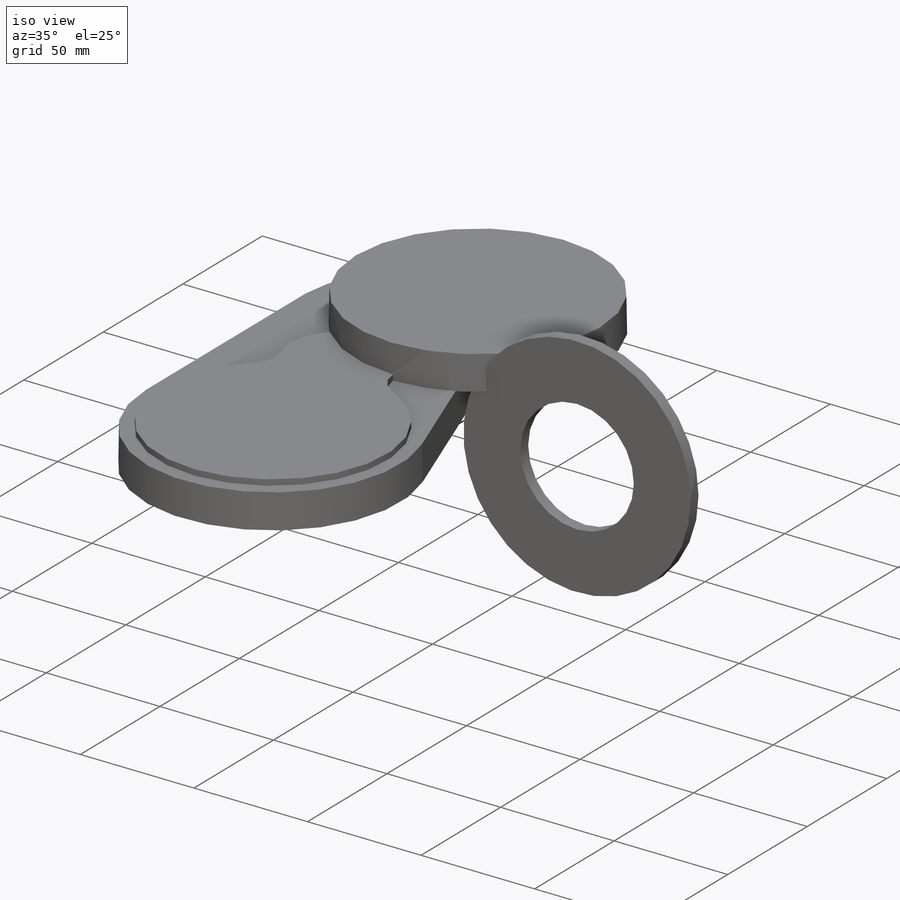
[diagram: iso view]
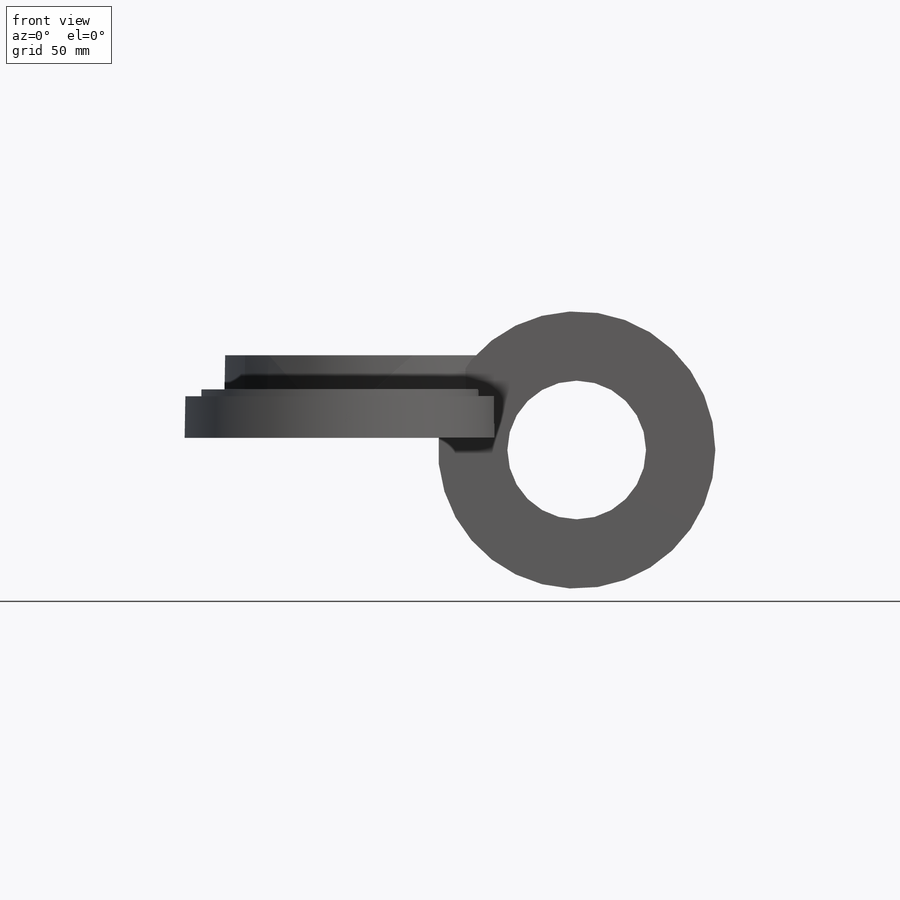
[diagram: front view]
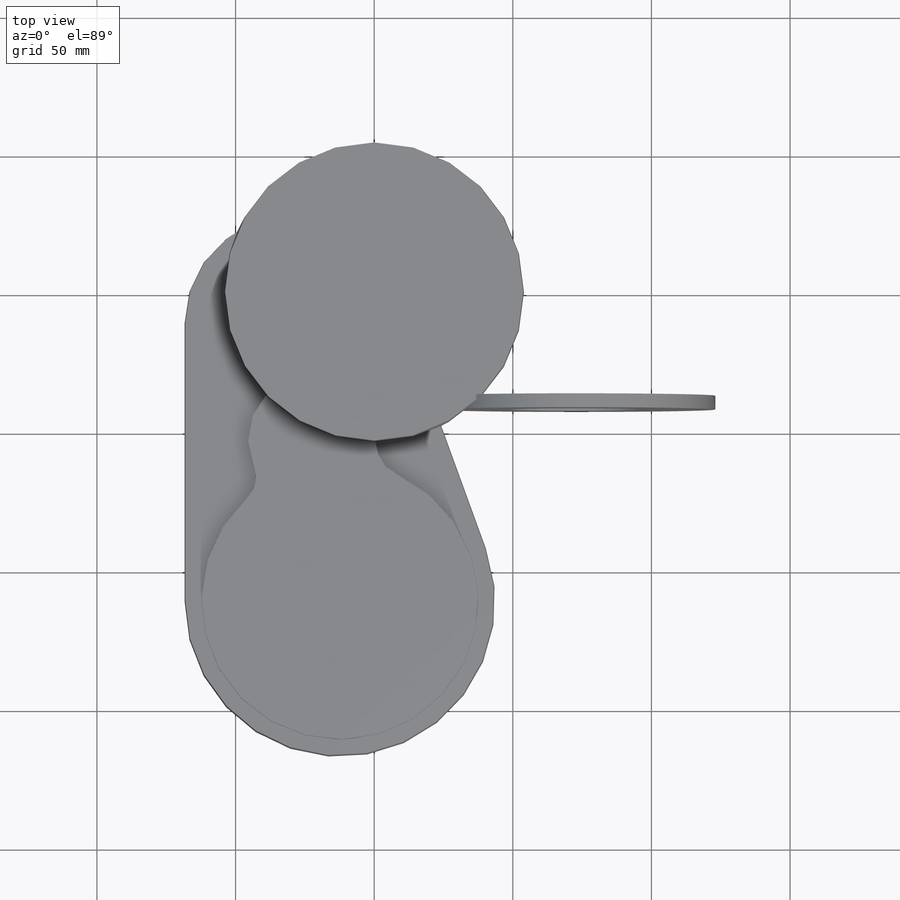
[diagram: top view]
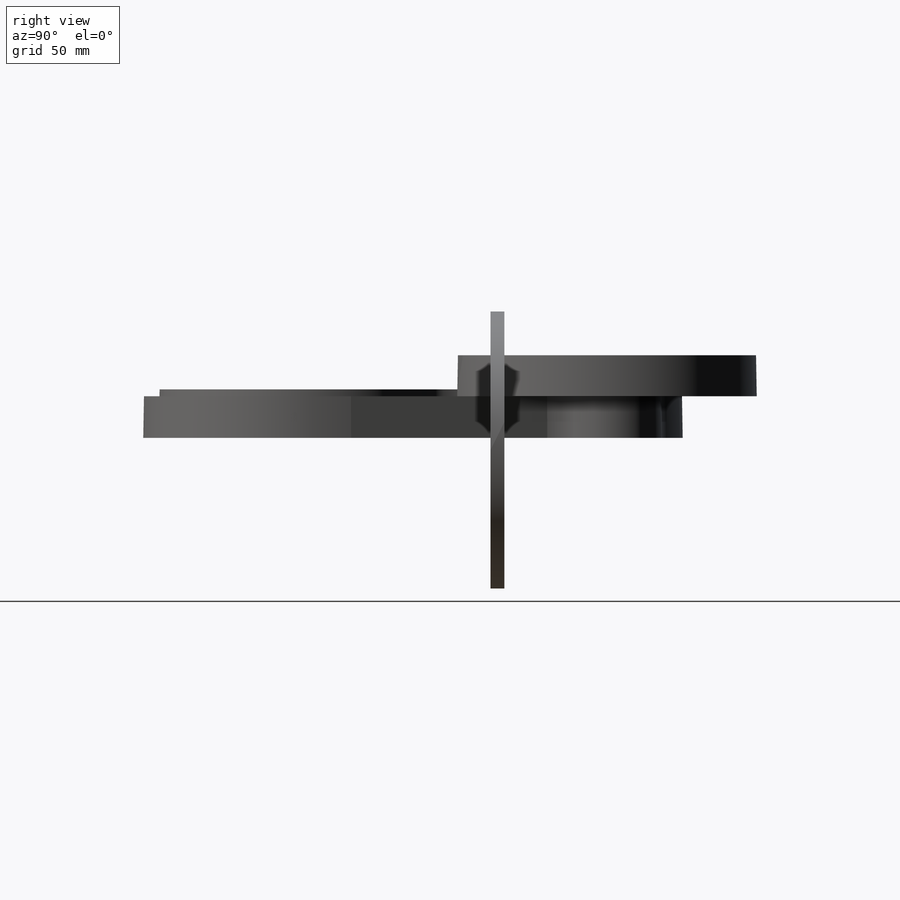
[diagram: right view]
SOLIDWORKS PART (.sldprt)
format: sldprt  version: not decoded by parser v0  size: 556,544 bytes
history: native  units: mm
features: plane x6, sketch x4, extrude x2, material x1, move_body x1, cut_extrude x1, revolve x1 + 1 further entry (+15 scaffold rows collapsed; 3 parser-record rows omitted)
feature tree (35):
  scaffold x15  (default folders/planes/origin — collapsed)
  material  "GD-AlSi9Cu3"
  plane  "Fläche"
  plane  "Längs"
  plane  "Quer"
  plane  "längs-PA364_241 _109356 Polscheibe"
  plane  "quer-PA364_241 _109356 Polscheibe"
  plane  "fläche-PA364_241 _109356 Polscheibe"
  "Scheibe"
  parser-record x3  (decoder bookkeeping rows leaked as tree rows — omitted from the tree; the rows remain in map.json)
  move_body  "Körper-Verschieben/Kopieren2"
  sketch  "Skizze2"  dims[c1.D1=65.0mm c1.D3=65.0mm c2.D1=40.0mm c2.D7=50.0mm c2.D4=20.0mm c2.D8=~50.553368mm c3.D1=40.0mm c3.D9=12.0mm c3.D10=12.0mm c3.D11=55.7mm c3.D12=71.0mm c3.D13=71.0mm c3.D14=94.0mm c3.D15=94.0mm c3.D5=60.0mm c3.D4=56.0mm c3.D7=45.0mm c4.D7=~45.84853mm c4.D8=40.0mm c4.D18=10.0mm c4.D19=10.0mm c4.D2=~698.131701mm c4.D4=21.0mm c4.D5=6.0mm c4.D6=110.0mm c4.D1=32.0mm c5.D8=20.0mm c5.D5=24.0mm c6.D8=24.0mm c6.D10=32.0mm c6.D13=43.0mm c6.D15=59.0mm c6.D16=15.0mm c6.D17=~174.532925mm c7.D16=~14.100799mm c7.D2=~174.532925mm c7.D3=7.0mm c7.D5=~111.395035mm c7.D6=102.0mm c7.D8=45.0mm c8.D3=12.0mm c8.D16=~212.287886mm c9.D3=17.0mm c9.D17=~349.06585mm c9.D18=~560.075306mm c9.D19=~560.075306mm c9.D20=32.0mm c9.D21=~1047.197551mm c10.D3=~349.06585mm c10.D7=~174.532925mm]
  extrude  "Grundkörper"  Depth=15mm
  sketch  "Skizze6"  dims[c1.D1=92.0mm c1.D5=20.0mm c2.D1=46.0mm c2.D3=100.0mm c2.D5=14.0mm c2.D6=10.0mm c2.D2=~174.532925mm c3.D3=17.0mm c3.D4=~113.113483mm c4.D3=32.0mm c4.D5=~174.532925mm c4.D6=~5.556742mm c5.D3=~174.532925mm c5.D4=59.0mm c5.D5=~22.603292mm c5.D6=62.0mm c5.D1=40.0mm c6.D3=30.0mm c6.D5=10.0mm c6.D6=50.0mm]
  extrude  "Aufsatz Abtrieb"  Depth=2.5mm
  sketch  "Skizze51"  dims[c1.D5=10.0mm c1.D1=102.0mm c1.D2=32.0mm c1.D3=32.0mm c1.D4=~1708.851871mm c1.D6=~5.556742mm c2.D4=~174.532925mm c2.D2=~174.532925mm]
  cut_extrude  "Schnitt-Linear austragen1"  [1 undecoded]
  sketch  "Skizze3"  dims[c1.D1=108.0mm c1.D2=26.8mm c1.D3=14.8mm c1.D4=12.0mm c1.D5=32.0mm c2.D1=107.5mm c2.D5=~17.453293mm]
  revolve  "Motorraum rotieren"  [1 undecoded]
decode coverage: 6 of 9 modeling features carry decoded parameters; 1 rows unclassified (native names shown)
note: ~ marks probable driven/reference dimensions
note: 2 parameter values undecoded
note: suppression state not decoded; provenance and decode notes live in map.json
